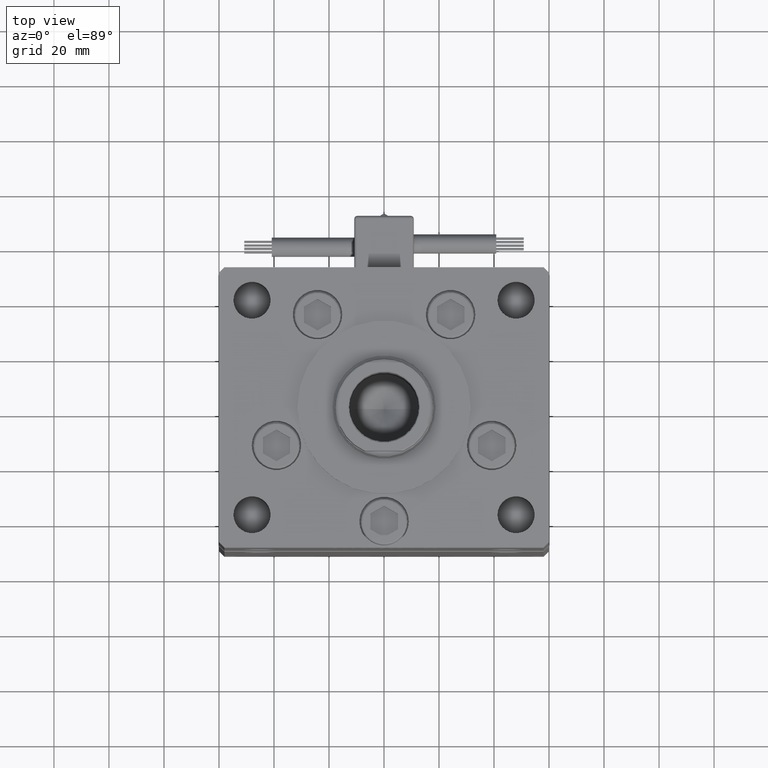
[diagram: clean part render]
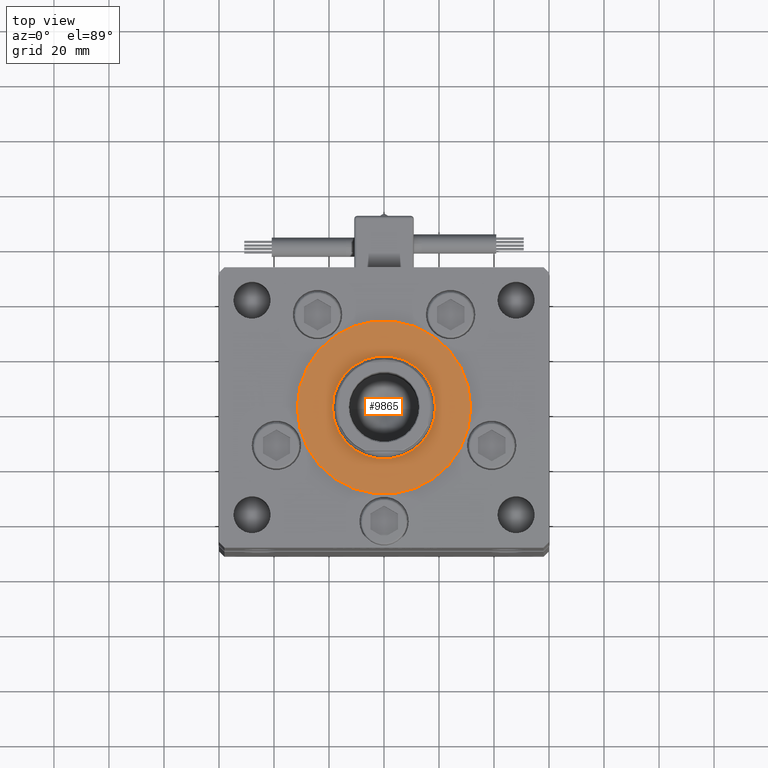
[diagram: same view with one face highlighted and labeled with its STEP entity id]
A machine part, top view. The second image highlights one B-rep face of the part: STEP entity #9865.
In plain terms, the highlighted planar face has unit normal (0, 0, 1).
Its self-contained STEP definition (entity closure, byte-faithful):
#1327 = CIRCLE ( 'NONE', #3120, 31.50000000000000000 ) ;
#3120 = AXIS2_PLACEMENT_3D ( 'NONE', #44979, #45271, #31872 ) ;
#3369 = CARTESIAN_POINT ( 'NONE',  ( 0.000000000000000000, -6.938893903907228378E-15, 2.000000000000000000 ) ) ;
#4927 = CARTESIAN_POINT ( 'NONE',  ( 31.50000000000000000, -3.081256486593065689E-15, 2.000000000000000000 ) ) ;
#6132 = DIRECTION ( 'NONE',  ( 1.000000000000000000, 0.000000000000000000, 0.000000000000000000 ) ) ;
#6357 = ORIENTED_EDGE ( 'NONE', *, *, #29806, .F. ) ;
#9865 = ADVANCED_FACE ( 'NONE', ( #47260, #29869 ), #16486, .T. ) ;
#11621 = VERTEX_POINT ( 'NONE', #43357 ) ;
#13728 = EDGE_CURVE ( 'NONE', #53352, #40667, #1327, .T. ) ;
#14714 = DIRECTION ( 'NONE',  ( 0.000000000000000000, 0.000000000000000000, 1.000000000000000000 ) ) ;
#14992 = CARTESIAN_POINT ( 'NONE',  ( 0.000000000000000000, -6.938893903907228378E-15, 2.000000000000000000 ) ) ;
#15794 = VERTEX_POINT ( 'NONE', #48193 ) ;
#16342 = CIRCLE ( 'NONE', #43653, 18.75000000000000355 ) ;
#16486 = PLANE ( 'NONE',  #44005 ) ;
#17095 = DIRECTION ( 'NONE',  ( 0.000000000000000000, 0.000000000000000000, 1.000000000000000000 ) ) ;
#17324 = DIRECTION ( 'NONE',  ( 1.000000000000000000, 0.000000000000000000, -0.000000000000000000 ) ) ;
#21683 = CIRCLE ( 'NONE', #49894, 31.50000000000000000 ) ;
#23818 = DIRECTION ( 'NONE',  ( 0.000000000000000000, 0.000000000000000000, 1.000000000000000000 ) ) ;
#29806 = EDGE_CURVE ( 'NONE', #15794, #11621, #43242, .T. ) ;
#29869 = FACE_OUTER_BOUND ( 'NONE', #54641, .T. ) ;
#30195 = DIRECTION ( 'NONE',  ( 1.000000000000000000, 0.000000000000000000, 0.000000000000000000 ) ) ;
#31872 = DIRECTION ( 'NONE',  ( 1.000000000000000000, 0.000000000000000000, 0.000000000000000000 ) ) ;
#32095 = DIRECTION ( 'NONE',  ( 1.000000000000000000, 0.000000000000000000, 0.000000000000000000 ) ) ;
#37269 = EDGE_CURVE ( 'NONE', #40667, #53352, #21683, .T. ) ;
#40667 = VERTEX_POINT ( 'NONE', #4927 ) ;
#41054 = CARTESIAN_POINT ( 'NONE',  ( -31.50000000000000000, -6.938893903907228378E-15, 2.000000000000000000 ) ) ;
#43242 = CIRCLE ( 'NONE', #46026, 18.75000000000000355 ) ;
#43357 = CARTESIAN_POINT ( 'NONE',  ( -18.75000000000000355, -4.642681155505941194E-15, 2.000000000000000000 ) ) ;
#43653 = AXIS2_PLACEMENT_3D ( 'NONE', #47033, #17095, #30195 ) ;
#44005 = AXIS2_PLACEMENT_3D ( 'NONE', #3369, #56369, #17324 ) ;
#44979 = CARTESIAN_POINT ( 'NONE',  ( 0.000000000000000000, -6.938893903907228378E-15, 2.000000000000000000 ) ) ;
#45271 = DIRECTION ( 'NONE',  ( 0.000000000000000000, 0.000000000000000000, 1.000000000000000000 ) ) ;
#45407 = EDGE_CURVE ( 'NONE', #11621, #15794, #16342, .T. ) ;
#46026 = AXIS2_PLACEMENT_3D ( 'NONE', #53735, #23818, #6132 ) ;
#46091 = ORIENTED_EDGE ( 'NONE', *, *, #37269, .T. ) ;
#47033 = CARTESIAN_POINT ( 'NONE',  ( 0.000000000000000000, -6.938893903907228378E-15, 2.000000000000000000 ) ) ;
#47260 = FACE_BOUND ( 'NONE', #48714, .T. ) ;
#48193 = CARTESIAN_POINT ( 'NONE',  ( 18.75000000000000355, -6.938893903907228378E-15, 2.000000000000000000 ) ) ;
#48714 = EDGE_LOOP ( 'NONE', ( #6357, #53439 ) ) ;
#49894 = AXIS2_PLACEMENT_3D ( 'NONE', #14992, #14714, #32095 ) ;
#50347 = ORIENTED_EDGE ( 'NONE', *, *, #13728, .T. ) ;
#53352 = VERTEX_POINT ( 'NONE', #41054 ) ;
#53439 = ORIENTED_EDGE ( 'NONE', *, *, #45407, .F. ) ;
#53735 = CARTESIAN_POINT ( 'NONE',  ( 0.000000000000000000, -6.938893903907228378E-15, 2.000000000000000000 ) ) ;
#54641 = EDGE_LOOP ( 'NONE', ( #50347, #46091 ) ) ;
#56369 = DIRECTION ( 'NONE',  ( 0.000000000000000000, 0.000000000000000000, 1.000000000000000000 ) ) ;